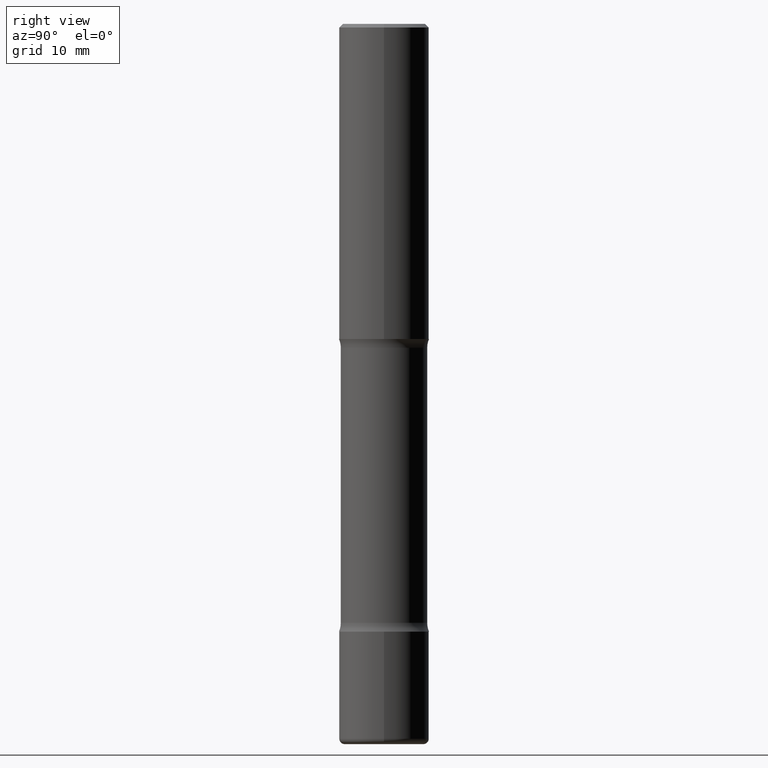
[diagram: clean part render]
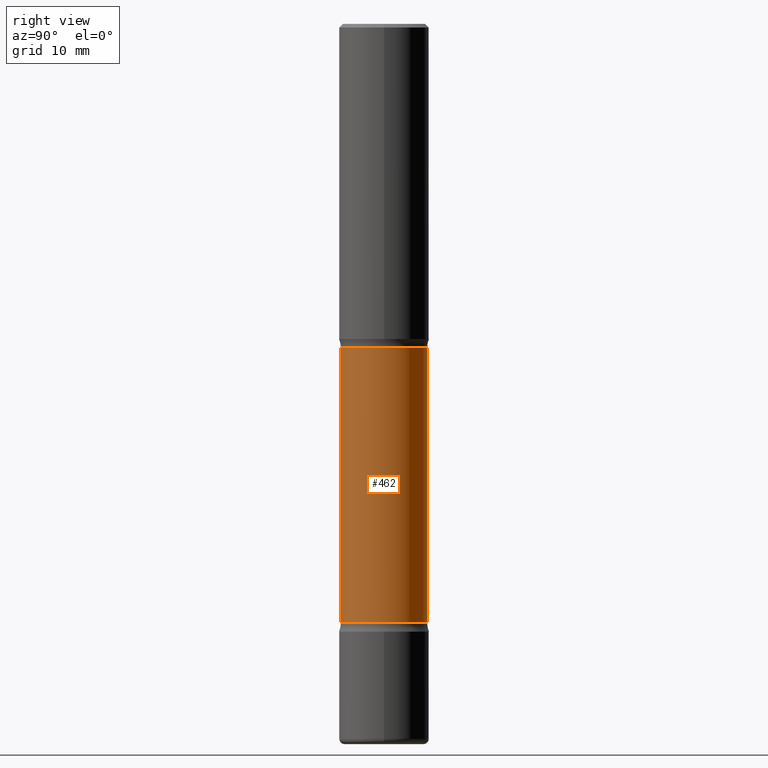
[diagram: same view with one face highlighted and labeled with its STEP entity id]
A machine part, right view. The second image highlights one B-rep face of the part: STEP entity #462.
In plain terms, the highlighted cylindrical surface (partial cylindrical patch) has radius 6.096 mm, axis along (0, -0, -1).
Its self-contained STEP definition (entity closure, byte-faithful):
#26 = ORIENTED_EDGE ( 'NONE', *, *, #281, .T. ) ;
#31 = VERTEX_POINT ( 'NONE', #336 ) ;
#53 = CIRCLE ( 'NONE', #139, 0.2399999999999991585 ) ;
#68 = VERTEX_POINT ( 'NONE', #505 ) ;
#88 = VECTOR ( 'NONE', #271, 39.37007874015748143 ) ;
#106 = DIRECTION ( 'NONE',  ( 6.982962677686265922E-15, 1.000000000000000000, -4.553079989440439881E-15 ) ) ;
#139 = AXIS2_PLACEMENT_3D ( 'NONE', #313, #182, #397 ) ;
#163 = CYLINDRICAL_SURFACE ( 'NONE', #351, 0.2399999999999995470 ) ;
#182 = DIRECTION ( 'NONE',  ( 2.131045706918198209E-29, -3.941753112844835198E-15, -1.000000000000000000 ) ) ;
#191 = CARTESIAN_POINT ( 'NONE',  ( 1.675911042644796465E-15, 0.2399999999999853084, -4.000000000000001776 ) ) ;
#205 = CIRCLE ( 'NONE', #358, 0.2399999999999999356 ) ;
#215 = EDGE_CURVE ( 'NONE', #493, #426, #53, .T. ) ;
#271 = DIRECTION ( 'NONE',  ( 2.131045706918198209E-29, -3.941753112844835198E-15, -1.000000000000000000 ) ) ;
#280 = CARTESIAN_POINT ( 'NONE',  ( 1.675911042644746767E-15, 0.2399999999999935796, -1.798989794855664792 ) ) ;
#281 = EDGE_CURVE ( 'NONE', #426, #68, #364, .T. ) ;
#283 = CARTESIAN_POINT ( 'NONE',  ( -1.680822009453971188E-15, -0.2400000000000047373, -1.798989794855663016 ) ) ;
#285 = EDGE_CURVE ( 'NONE', #493, #31, #487, .T. ) ;
#299 = ORIENTED_EDGE ( 'NONE', *, *, #437, .F. ) ;
#300 = VECTOR ( 'NONE', #318, 39.37007874015748143 ) ;
#313 = CARTESIAN_POINT ( 'NONE',  ( 4.894907439142729913E-29, -5.571506386592702620E-15, -1.798989794855663904 ) ) ;
#318 = DIRECTION ( 'NONE',  ( 2.131045706918198209E-29, -3.941753112844835198E-15, -1.000000000000000000 ) ) ;
#322 = DIRECTION ( 'NONE',  ( 6.982962677686265922E-15, 1.000000000000000000, -4.553079989440446980E-15 ) ) ;
#331 = CARTESIAN_POINT ( 'NONE',  ( 8.149057728864868240E-29, -1.159064384222567188E-14, -3.326010205144335430 ) ) ;
#334 = DIRECTION ( 'NONE',  ( 2.131045706918198209E-29, -3.941753112844835198E-15, -1.000000000000000000 ) ) ;
#336 = CARTESIAN_POINT ( 'NONE',  ( 1.675911042644784829E-15, 0.2399999999999883615, -3.326010205144336762 ) ) ;
#351 = AXIS2_PLACEMENT_3D ( 'NONE', #560, #370, #322 ) ;
#356 = ORIENTED_EDGE ( 'NONE', *, *, #215, .T. ) ;
#358 = AXIS2_PLACEMENT_3D ( 'NONE', #331, #334, #106 ) ;
#364 = LINE ( 'NONE', #535, #300 ) ;
#370 = DIRECTION ( 'NONE',  ( 2.131045706918198209E-29, -3.941753112844835198E-15, -1.000000000000000000 ) ) ;
#397 = DIRECTION ( 'NONE',  ( 6.982962677686265922E-15, 1.000000000000000000, -3.414809992080340955E-15 ) ) ;
#426 = VERTEX_POINT ( 'NONE', #283 ) ;
#437 = EDGE_CURVE ( 'NONE', #31, #68, #205, .T. ) ;
#450 = ORIENTED_EDGE ( 'NONE', *, *, #285, .F. ) ;
#462 = ADVANCED_FACE ( 'NONE', ( #551 ), #163, .T. ) ;
#468 = EDGE_LOOP ( 'NONE', ( #356, #26, #299, #450 ) ) ;
#487 = LINE ( 'NONE', #191, #88 ) ;
#493 = VERTEX_POINT ( 'NONE', #280 ) ;
#505 = CARTESIAN_POINT ( 'NONE',  ( -1.680822009453943775E-15, -0.2400000000000115097, -3.326010205144334542 ) ) ;
#535 = CARTESIAN_POINT ( 'NONE',  ( -1.646519519465068557E-15, -0.2400000000000137856, -4.000000000000000000 ) ) ;
#551 = FACE_OUTER_BOUND ( 'NONE', #468, .T. ) ;
#560 = CARTESIAN_POINT ( 'NONE',  ( 9.585360787698712522E-29, -1.424734521412364332E-14, -4.000000000000000888 ) ) ;